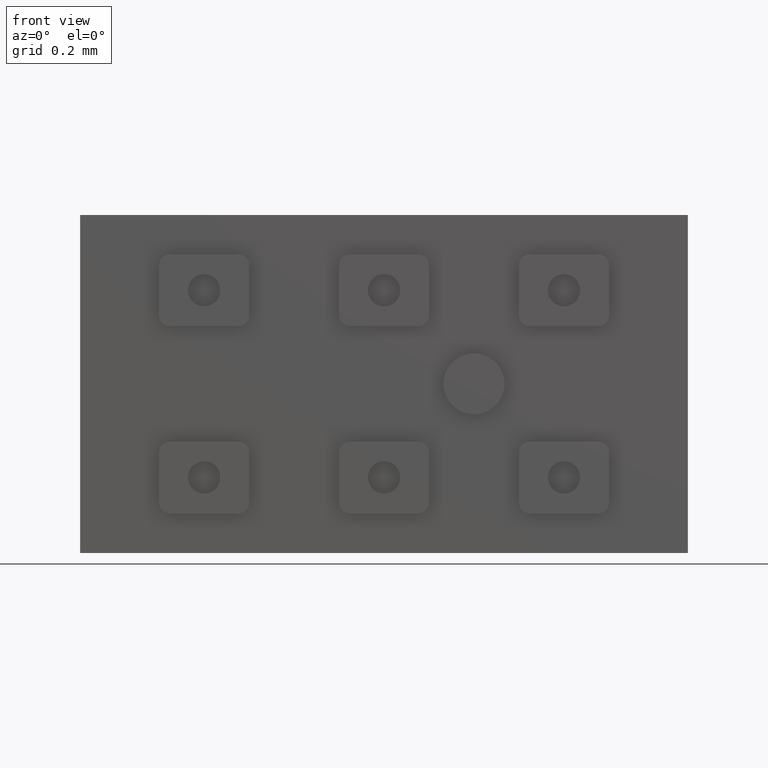
[diagram: clean part render]
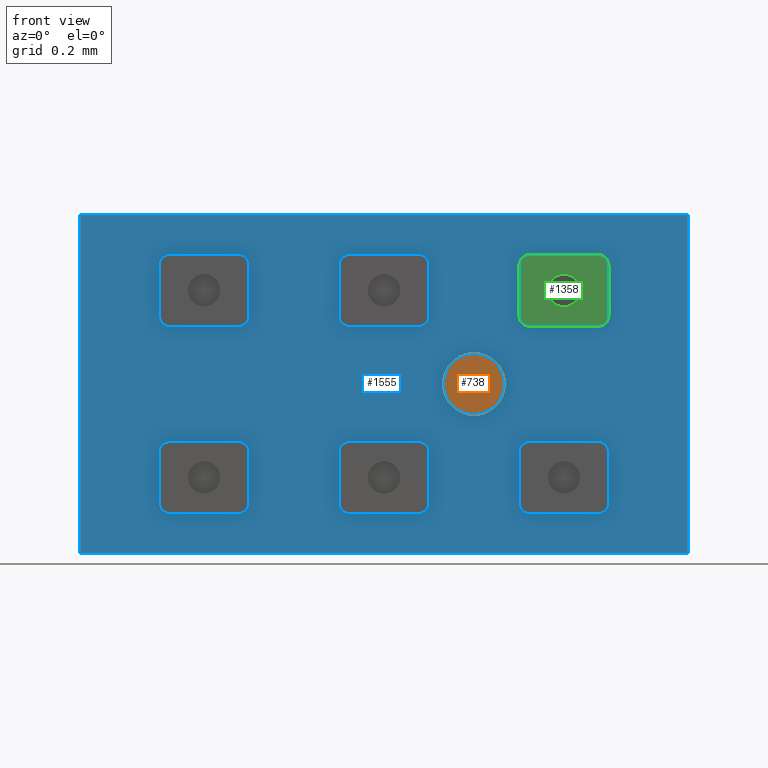
[diagram: same view with three faces highlighted in distinct colors, each labeled with its STEP entity id]
A machine part, front view with three faces highlighted in distinct colors.
Their STEP definitions:

[orange] entity #738 — the highlighted planar face has unit normal (0, -1, 0).
#362 = ORIENTED_EDGE ( 'NONE', *, *, #743, .T. ) ;
#559 = CARTESIAN_POINT ( 'NONE',  ( 0.2499999999999997780, -0.3149999999999999467, 0.08500000000000003386 ) ) ;
#738 = ADVANCED_FACE ( 'NONE', ( #1523 ), #1146, .T. ) ;
#743 = EDGE_CURVE ( 'NONE', #1703, #2240, #1034, .T. ) ;
#751 = AXIS2_PLACEMENT_3D ( 'NONE', #1535, #1174, #762 ) ;
#760 = DIRECTION ( 'NONE',  ( 0.000000000000000000, -1.000000000000000000, 0.000000000000000000 ) ) ;
#762 = DIRECTION ( 'NONE',  ( 0.000000000000000000, 0.000000000000000000, -1.000000000000000000 ) ) ;
#883 = EDGE_LOOP ( 'NONE', ( #362, #1006 ) ) ;
#968 = CARTESIAN_POINT ( 'NONE',  ( 0.2499999999999997780, -0.3149999999999999467, 0.000000000000000000 ) ) ;
#1006 = ORIENTED_EDGE ( 'NONE', *, *, #1284, .T. ) ;
#1034 = CIRCLE ( 'NONE', #1372, 0.08500000000000003386 ) ;
#1146 = PLANE ( 'NONE',  #2162 ) ;
#1174 = DIRECTION ( 'NONE',  ( 0.000000000000000000, -1.000000000000000000, 0.000000000000000000 ) ) ;
#1284 = EDGE_CURVE ( 'NONE', #2240, #1703, #1285, .T. ) ;
#1285 = CIRCLE ( 'NONE', #751, 0.08500000000000003386 ) ;
#1372 = AXIS2_PLACEMENT_3D ( 'NONE', #968, #1752, #2028 ) ;
#1523 = FACE_OUTER_BOUND ( 'NONE', #883, .T. ) ;
#1535 = CARTESIAN_POINT ( 'NONE',  ( 0.2499999999999997780, -0.3149999999999999467, 0.000000000000000000 ) ) ;
#1545 = DIRECTION ( 'NONE',  ( 0.000000000000000000, -0.000000000000000000, -1.000000000000000000 ) ) ;
#1703 = VERTEX_POINT ( 'NONE', #559 ) ;
#1752 = DIRECTION ( 'NONE',  ( 0.000000000000000000, -1.000000000000000000, 0.000000000000000000 ) ) ;
#1938 = CARTESIAN_POINT ( 'NONE',  ( 0.2499999999999997780, -0.3149999999999999467, 0.000000000000000000 ) ) ;
#2018 = CARTESIAN_POINT ( 'NONE',  ( 0.2499999999999997780, -0.3149999999999999467, -0.08500000000000003386 ) ) ;
#2028 = DIRECTION ( 'NONE',  ( 0.000000000000000000, 0.000000000000000000, -1.000000000000000000 ) ) ;
#2162 = AXIS2_PLACEMENT_3D ( 'NONE', #1938, #760, #1545 ) ;
#2240 = VERTEX_POINT ( 'NONE', #2018 ) ;

[blue] entity #1555 — the highlighted planar face has unit normal (0, 1, 0).
#5 = VERTEX_POINT ( 'NONE', #1710 ) ;
#8 = LINE ( 'NONE', #2384, #838 ) ;
#18 = EDGE_CURVE ( 'NONE', #165, #488, #332, .T. ) ;
#22 = LINE ( 'NONE', #1992, #1778 ) ;
#54 = CARTESIAN_POINT ( 'NONE',  ( 0.1250000000000000000, -0.2949999999999999845, 0.3300000000000035683 ) ) ;
#57 = DIRECTION ( 'NONE',  ( 0.000000000000000000, 1.000000000000000000, 0.000000000000000000 ) ) ;
#58 = VERTEX_POINT ( 'NONE', #64 ) ;
#63 = EDGE_CURVE ( 'NONE', #350, #2362, #568, .T. ) ;
#64 = CARTESIAN_POINT ( 'NONE',  ( 0.3750000000000000000, -0.2949999999999999845, 0.3300000000000001266 ) ) ;
#72 = CARTESIAN_POINT ( 'NONE',  ( 0.4049999999999999711, -0.2949999999999999845, -0.3599999999999999867 ) ) ;
#76 = AXIS2_PLACEMENT_3D ( 'NONE', #1945, #700, #907 ) ;
#81 = ORIENTED_EDGE ( 'NONE', *, *, #1334, .T. ) ;
#82 = ORIENTED_EDGE ( 'NONE', *, *, #1518, .T. ) ;
#89 = CARTESIAN_POINT ( 'NONE',  ( 0.09500000000000002887, -0.2949999999999999845, 0.1900000000000035272 ) ) ;
#93 = CIRCLE ( 'NONE', #677, 0.02999999999999997113 ) ;
#98 = VERTEX_POINT ( 'NONE', #1457 ) ;
#101 = CARTESIAN_POINT ( 'NONE',  ( -0.1250000000000000000, -0.2949999999999999845, 0.1900000000000035272 ) ) ;
#107 = VECTOR ( 'NONE', #1616, 1000.000000000000000 ) ;
#110 = CARTESIAN_POINT ( 'NONE',  ( -0.8445000000000001394, -0.2949999999999999845, -0.4694999999999999174 ) ) ;
#111 = CARTESIAN_POINT ( 'NONE',  ( -0.5950000000000000844, -0.2949999999999999845, -0.1599999999999930367 ) ) ;
#113 = VECTOR ( 'NONE', #1522, 1000.000000000000000 ) ;
#117 = CARTESIAN_POINT ( 'NONE',  ( 0.1250000000000000000, -0.2949999999999999845, 0.1900000000000035272 ) ) ;
#118 = VERTEX_POINT ( 'NONE', #487 ) ;
#125 = DIRECTION ( 'NONE',  ( 1.000000000000000000, 0.000000000000000000, 0.000000000000000000 ) ) ;
#138 = VECTOR ( 'NONE', #2112, 1000.000000000000000 ) ;
#139 = ORIENTED_EDGE ( 'NONE', *, *, #1706, .T. ) ;
#147 = CIRCLE ( 'NONE', #317, 0.02999999999999997113 ) ;
#153 = VECTOR ( 'NONE', #320, 1000.000000000000000 ) ;
#160 = DIRECTION ( 'NONE',  ( -0.000000000000000000, -0.000000000000000000, -1.000000000000000000 ) ) ;
#165 = VERTEX_POINT ( 'NONE', #2405 ) ;
#168 = DIRECTION ( 'NONE',  ( -0.000000000000000000, -0.000000000000000000, -1.000000000000000000 ) ) ;
#170 = CARTESIAN_POINT ( 'NONE',  ( -0.1250000000000000000, -0.2949999999999999845, -0.3299999999999965183 ) ) ;
#185 = DIRECTION ( 'NONE',  ( 0.000000000000000000, 0.000000000000000000, 1.000000000000000000 ) ) ;
#187 = VERTEX_POINT ( 'NONE', #666 ) ;
#196 = AXIS2_PLACEMENT_3D ( 'NONE', #449, #1817, #257 ) ;
#198 = ORIENTED_EDGE ( 'NONE', *, *, #2242, .T. ) ;
#203 = CIRCLE ( 'NONE', #287, 0.08500000000000003386 ) ;
#214 = ORIENTED_EDGE ( 'NONE', *, *, #1893, .F. ) ;
#219 = CARTESIAN_POINT ( 'NONE',  ( -0.3750000000000000000, -0.2949999999999999845, 0.3300000000000071210 ) ) ;
#220 = AXIS2_PLACEMENT_3D ( 'NONE', #1103, #1910, #2238 ) ;
#222 = DIRECTION ( 'NONE',  ( -1.000000000000000000, -0.000000000000000000, -0.000000000000000000 ) ) ;
#225 = ORIENTED_EDGE ( 'NONE', *, *, #1853, .F. ) ;
#228 = CIRCLE ( 'NONE', #2015, 0.02999999999999997113 ) ;
#229 = VERTEX_POINT ( 'NONE', #1415 ) ;
#230 = EDGE_CURVE ( 'NONE', #1028, #98, #1568, .T. ) ;
#233 = EDGE_CURVE ( 'NONE', #187, #943, #1690, .T. ) ;
#239 = ORIENTED_EDGE ( 'NONE', *, *, #1176, .T. ) ;
#240 = CARTESIAN_POINT ( 'NONE',  ( 0.8444999999999999174, -0.2949999999999999845, -0.4695000000000001394 ) ) ;
#246 = LINE ( 'NONE', #1818, #1814 ) ;
#252 = CARTESIAN_POINT ( 'NONE',  ( 0.5950000000000000844, -0.2949999999999999845, 0.1600000000000000866 ) ) ;
#255 = ORIENTED_EDGE ( 'NONE', *, *, #261, .T. ) ;
#257 = DIRECTION ( 'NONE',  ( 0.000000000000000000, 0.000000000000000000, 1.000000000000000000 ) ) ;
#258 = DIRECTION ( 'NONE',  ( 0.000000000000000000, 1.000000000000000000, 0.000000000000000000 ) ) ;
#261 = EDGE_CURVE ( 'NONE', #1802, #410, #547, .T. ) ;
#262 = PLANE ( 'NONE',  #1234 ) ;
#270 = VERTEX_POINT ( 'NONE', #1675 ) ;
#274 = ORIENTED_EDGE ( 'NONE', *, *, #63, .T. ) ;
#275 = CARTESIAN_POINT ( 'NONE',  ( 0.8444999999999998064, -0.2949999999999999845, 0.4694999999999998619 ) ) ;
#281 = ORIENTED_EDGE ( 'NONE', *, *, #1824, .T. ) ;
#287 = AXIS2_PLACEMENT_3D ( 'NONE', #1362, #2166, #185 ) ;
#290 = CARTESIAN_POINT ( 'NONE',  ( 0.09500000000000002887, -0.2949999999999999845, -0.1899999999999964773 ) ) ;
#292 = EDGE_CURVE ( 'NONE', #2079, #1092, #228, .T. ) ;
#299 = CARTESIAN_POINT ( 'NONE',  ( -0.6250000000000000000, -0.2949999999999999845, -0.1899999999999930078 ) ) ;
#300 = EDGE_CURVE ( 'NONE', #509, #1208, #2114, .T. ) ;
#302 = CIRCLE ( 'NONE', #515, 0.02999999999999997113 ) ;
#313 = VERTEX_POINT ( 'NONE', #2310 ) ;
#314 = VERTEX_POINT ( 'NONE', #110 ) ;
#316 = DIRECTION ( 'NONE',  ( 0.000000000000000000, 1.000000000000000000, 0.000000000000000000 ) ) ;
#317 = AXIS2_PLACEMENT_3D ( 'NONE', #2541, #2564, #595 ) ;
#320 = DIRECTION ( 'NONE',  ( -0.000000000000000000, -0.000000000000000000, -1.000000000000000000 ) ) ;
#322 = AXIS2_PLACEMENT_3D ( 'NONE', #1048, #57, #851 ) ;
#328 = ORIENTED_EDGE ( 'NONE', *, *, #1026, .T. ) ;
#332 = CIRCLE ( 'NONE', #2568, 0.02999999999999997113 ) ;
#336 = EDGE_CURVE ( 'NONE', #1335, #2430, #2221, .T. ) ;
#337 = LINE ( 'NONE', #2507, #1023 ) ;
#343 = CARTESIAN_POINT ( 'NONE',  ( -0.1250000000000000000, -0.2949999999999999845, 0.1900000000000035272 ) ) ;
#347 = DIRECTION ( 'NONE',  ( 0.000000000000000000, 0.000000000000000000, 1.000000000000000000 ) ) ;
#348 = CARTESIAN_POINT ( 'NONE',  ( 0.3750000000000000000, -0.2949999999999999845, -0.3300000000000000155 ) ) ;
#350 = VERTEX_POINT ( 'NONE', #1694 ) ;
#354 = LINE ( 'NONE', #1147, #1810 ) ;
#358 = ORIENTED_EDGE ( 'NONE', *, *, #2274, .T. ) ;
#380 = CARTESIAN_POINT ( 'NONE',  ( -0.09500000000000002887, -0.2949999999999999845, 0.1600000000000035560 ) ) ;
#384 = DIRECTION ( 'NONE',  ( 0.000000000000000000, 0.000000000000000000, 1.000000000000000000 ) ) ;
#402 = EDGE_CURVE ( 'NONE', #270, #1210, #203, .T. ) ;
#410 = VERTEX_POINT ( 'NONE', #964 ) ;
#413 = CARTESIAN_POINT ( 'NONE',  ( -0.5950000000000000844, -0.2949999999999999845, 0.1600000000000070810 ) ) ;
#420 = EDGE_CURVE ( 'NONE', #765, #1636, #1201, .T. ) ;
#427 = VECTOR ( 'NONE', #1469, 1000.000000000000000 ) ;
#433 = VECTOR ( 'NONE', #1240, 1000.000000000000000 ) ;
#445 = CARTESIAN_POINT ( 'NONE',  ( 0.8444999999999998064, -0.2949999999999999845, 0.4694999999999998619 ) ) ;
#449 = CARTESIAN_POINT ( 'NONE',  ( -0.5950000000000000844, -0.2949999999999999845, -0.3299999999999930766 ) ) ;
#455 = CARTESIAN_POINT ( 'NONE',  ( -0.4049999999999999711, -0.2949999999999999845, -0.1899999999999930078 ) ) ;
#462 = DIRECTION ( 'NONE',  ( 0.000000000000000000, 1.000000000000000000, 0.000000000000000000 ) ) ;
#468 = CARTESIAN_POINT ( 'NONE',  ( 0.1250000000000000000, -0.2949999999999999845, 0.1900000000000035272 ) ) ;
#474 = DIRECTION ( 'NONE',  ( 1.000000000000000000, 0.000000000000000000, 0.000000000000000000 ) ) ;
#475 = CIRCLE ( 'NONE', #2471, 0.02999999999999997113 ) ;
#482 = CIRCLE ( 'NONE', #322, 0.02999999999999997113 ) ;
#486 = LINE ( 'NONE', #111, #1485 ) ;
#487 = CARTESIAN_POINT ( 'NONE',  ( 0.09500000000000002887, -0.2949999999999999845, 0.1600000000000035560 ) ) ;
#488 = VERTEX_POINT ( 'NONE', #1793 ) ;
#491 = DIRECTION ( 'NONE',  ( 0.000000000000000000, 1.000000000000000000, 0.000000000000000000 ) ) ;
#499 = VECTOR ( 'NONE', #2197, 1000.000000000000000 ) ;
#500 = VECTOR ( 'NONE', #2523, 1000.000000000000000 ) ;
#503 = CARTESIAN_POINT ( 'NONE',  ( 0.4049999999999999711, -0.2949999999999999845, 0.1900000000000000577 ) ) ;
#505 = DIRECTION ( 'NONE',  ( 0.000000000000000000, 1.000000000000000000, -0.000000000000000000 ) ) ;
#509 = VERTEX_POINT ( 'NONE', #1982 ) ;
#510 = EDGE_LOOP ( 'NONE', ( #2373, #1854 ) ) ;
#515 = AXIS2_PLACEMENT_3D ( 'NONE', #1306, #316, #1109 ) ;
#535 = CARTESIAN_POINT ( 'NONE',  ( 0.5950000000000000844, -0.2949999999999999845, 0.3600000000000000977 ) ) ;
#542 = DIRECTION ( 'NONE',  ( 0.000000000000000000, 1.000000000000000000, 0.000000000000000000 ) ) ;
#547 = LINE ( 'NONE', #2517, #1434 ) ;
#549 = DIRECTION ( 'NONE',  ( -0.000000000000000000, -1.000000000000000000, -0.000000000000000000 ) ) ;
#555 = DIRECTION ( 'NONE',  ( 0.000000000000000000, 1.000000000000000000, 0.000000000000000000 ) ) ;
#557 = ORIENTED_EDGE ( 'NONE', *, *, #1839, .T. ) ;
#568 = CIRCLE ( 'NONE', #1929, 0.02999999999999997113 ) ;
#578 = VECTOR ( 'NONE', #2480, 1000.000000000000000 ) ;
#580 = AXIS2_PLACEMENT_3D ( 'NONE', #1644, #1856, #2207 ) ;
#585 = ORIENTED_EDGE ( 'NONE', *, *, #292, .T. ) ;
#595 = DIRECTION ( 'NONE',  ( 0.000000000000000000, 0.000000000000000000, 1.000000000000000000 ) ) ;
#600 = CARTESIAN_POINT ( 'NONE',  ( 0.4049999999999999711, -0.2949999999999999845, -0.3599999999999999867 ) ) ;
#603 = EDGE_CURVE ( 'NONE', #1182, #187, #8, .T. ) ;
#605 = ORIENTED_EDGE ( 'NONE', *, *, #2545, .T. ) ;
#606 = CIRCLE ( 'NONE', #813, 0.02999999999999997113 ) ;
#611 = DIRECTION ( 'NONE',  ( 0.000000000000000000, 0.000000000000000000, 1.000000000000000000 ) ) ;
#620 = AXIS2_PLACEMENT_3D ( 'NONE', #1179, #1772, #1748 ) ;
#627 = CARTESIAN_POINT ( 'NONE',  ( -0.8445000000000001394, -0.2949999999999999845, 0.4695000000000000284 ) ) ;
#629 = FACE_BOUND ( 'NONE', #1218, .T. ) ;
#644 = CARTESIAN_POINT ( 'NONE',  ( 0.3750000000000000000, -0.2949999999999999845, -0.3300000000000000155 ) ) ;
#645 = VERTEX_POINT ( 'NONE', #942 ) ;
#657 = LINE ( 'NONE', #275, #2243 ) ;
#666 = CARTESIAN_POINT ( 'NONE',  ( 0.09500000000000002887, -0.2949999999999999845, 0.3600000000000035394 ) ) ;
#671 = FACE_BOUND ( 'NONE', #1919, .T. ) ;
#676 = DIRECTION ( 'NONE',  ( -1.000000000000000000, -0.000000000000000000, -0.000000000000000000 ) ) ;
#677 = AXIS2_PLACEMENT_3D ( 'NONE', #455, #1074, #864 ) ;
#685 = EDGE_CURVE ( 'NONE', #98, #1759, #1133, .T. ) ;
#688 = DIRECTION ( 'NONE',  ( 0.000000000000000000, -0.000000000000000000, 1.000000000000000000 ) ) ;
#691 = CIRCLE ( 'NONE', #220, 0.02999999999999997113 ) ;
#692 = CIRCLE ( 'NONE', #2557, 0.02999999999999997113 ) ;
#700 = DIRECTION ( 'NONE',  ( 0.000000000000000000, 1.000000000000000000, 0.000000000000000000 ) ) ;
#708 = VERTEX_POINT ( 'NONE', #1366 ) ;
#710 = DIRECTION ( 'NONE',  ( 0.000000000000000000, 0.000000000000000000, 1.000000000000000000 ) ) ;
#721 = EDGE_CURVE ( 'NONE', #645, #1626, #1950, .T. ) ;
#722 = EDGE_CURVE ( 'NONE', #1759, #1301, #2488, .T. ) ;
#724 = ORIENTED_EDGE ( 'NONE', *, *, #2382, .T. ) ;
#734 = CARTESIAN_POINT ( 'NONE',  ( -0.09500000000000002887, -0.2949999999999999845, -0.3599999999999964895 ) ) ;
#740 = DIRECTION ( 'NONE',  ( 0.000000000000000000, 0.000000000000000000, 1.000000000000000000 ) ) ;
#761 = ORIENTED_EDGE ( 'NONE', *, *, #800, .T. ) ;
#765 = VERTEX_POINT ( 'NONE', #600 ) ;
#768 = CARTESIAN_POINT ( 'NONE',  ( 0.8444999999999999174, -0.2949999999999999845, -0.4695000000000001394 ) ) ;
#778 = ORIENTED_EDGE ( 'NONE', *, *, #832, .T. ) ;
#781 = ORIENTED_EDGE ( 'NONE', *, *, #1312, .T. ) ;
#791 = VERTEX_POINT ( 'NONE', #627 ) ;
#800 = EDGE_CURVE ( 'NONE', #5, #165, #2209, .T. ) ;
#812 = CIRCLE ( 'NONE', #1676, 0.02999999999999997113 ) ;
#813 = AXIS2_PLACEMENT_3D ( 'NONE', #1347, #2156, #1970 ) ;
#831 = DIRECTION ( 'NONE',  ( 0.000000000000000000, 1.000000000000000000, 0.000000000000000000 ) ) ;
#832 = EDGE_CURVE ( 'NONE', #2551, #1028, #246, .T. ) ;
#838 = VECTOR ( 'NONE', #1507, 1000.000000000000000 ) ;
#842 = VERTEX_POINT ( 'NONE', #219 ) ;
#851 = DIRECTION ( 'NONE',  ( 0.000000000000000000, 0.000000000000000000, 1.000000000000000000 ) ) ;
#852 = VERTEX_POINT ( 'NONE', #2419 ) ;
#864 = DIRECTION ( 'NONE',  ( 0.000000000000000000, 0.000000000000000000, -1.000000000000000000 ) ) ;
#868 = EDGE_LOOP ( 'NONE', ( #988, #274, #2460, #2044, #761, #2543, #724, #1281 ) ) ;
#876 = ORIENTED_EDGE ( 'NONE', *, *, #1015, .T. ) ;
#884 = CARTESIAN_POINT ( 'NONE',  ( -0.09500000000000002887, -0.2949999999999999845, 0.3600000000000035394 ) ) ;
#897 = DIRECTION ( 'NONE',  ( 0.000000000000000000, 1.000000000000000000, 0.000000000000000000 ) ) ;
#898 = VECTOR ( 'NONE', #474, 1000.000000000000000 ) ;
#899 = ORIENTED_EDGE ( 'NONE', *, *, #2328, .T. ) ;
#900 = VERTEX_POINT ( 'NONE', #2446 ) ;
#903 = AXIS2_PLACEMENT_3D ( 'NONE', #2270, #1612, #2421 ) ;
#907 = DIRECTION ( 'NONE',  ( 0.000000000000000000, 0.000000000000000000, 1.000000000000000000 ) ) ;
#910 = DIRECTION ( 'NONE',  ( 0.000000000000000000, 0.000000000000000000, 1.000000000000000000 ) ) ;
#911 = ORIENTED_EDGE ( 'NONE', *, *, #721, .T. ) ;
#912 = VECTOR ( 'NONE', #2223, 1000.000000000000000 ) ;
#914 = LINE ( 'NONE', #1498, #898 ) ;
#919 = EDGE_CURVE ( 'NONE', #791, #1594, #657, .T. ) ;
#934 = EDGE_CURVE ( 'NONE', #1092, #58, #1459, .T. ) ;
#937 = DIRECTION ( 'NONE',  ( 0.000000000000000000, 1.000000000000000000, 0.000000000000000000 ) ) ;
#938 = DIRECTION ( 'NONE',  ( 0.000000000000000000, 0.000000000000000000, 1.000000000000000000 ) ) ;
#942 = CARTESIAN_POINT ( 'NONE',  ( -0.3750000000000000000, -0.2949999999999999845, -0.1899999999999930078 ) ) ;
#943 = VERTEX_POINT ( 'NONE', #54 ) ;
#946 = CARTESIAN_POINT ( 'NONE',  ( 0.6250000000000000000, -0.2949999999999999845, 0.1900000000000000577 ) ) ;
#957 = ORIENTED_EDGE ( 'NONE', *, *, #1385, .T. ) ;
#964 = CARTESIAN_POINT ( 'NONE',  ( 0.6250000000000000000, -0.2949999999999999845, -0.3300000000000000155 ) ) ;
#970 = CARTESIAN_POINT ( 'NONE',  ( -0.5950000000000000844, -0.2949999999999999845, -0.1599999999999930367 ) ) ;
#985 = ORIENTED_EDGE ( 'NONE', *, *, #2476, .F. ) ;
#987 = CARTESIAN_POINT ( 'NONE',  ( -0.3750000000000000000, -0.2949999999999999845, -0.3299999999999930766 ) ) ;
#988 = ORIENTED_EDGE ( 'NONE', *, *, #2425, .T. ) ;
#992 = DIRECTION ( 'NONE',  ( 0.000000000000000000, 0.000000000000000000, 1.000000000000000000 ) ) ;
#997 = ORIENTED_EDGE ( 'NONE', *, *, #336, .T. ) ;
#1010 = DIRECTION ( 'NONE',  ( -1.000000000000000000, -0.000000000000000000, -0.000000000000000000 ) ) ;
#1011 = DIRECTION ( 'NONE',  ( -0.000000000000000000, -0.000000000000000000, -1.000000000000000000 ) ) ;
#1015 = EDGE_CURVE ( 'NONE', #2186, #1198, #2466, .T. ) ;
#1017 = EDGE_CURVE ( 'NONE', #2440, #1182, #812, .T. ) ;
#1023 = VECTOR ( 'NONE', #1917, 1000.000000000000000 ) ;
#1026 = EDGE_CURVE ( 'NONE', #313, #842, #691, .T. ) ;
#1028 = VERTEX_POINT ( 'NONE', #2287 ) ;
#1039 = VERTEX_POINT ( 'NONE', #117 ) ;
#1044 = VECTOR ( 'NONE', #1481, 1000.000000000000000 ) ;
#1048 = CARTESIAN_POINT ( 'NONE',  ( -0.5950000000000000844, -0.2949999999999999845, 0.1900000000000070521 ) ) ;
#1058 = CARTESIAN_POINT ( 'NONE',  ( 0.3750000000000000000, -0.2949999999999999845, 0.1900000000000000577 ) ) ;
#1068 = CARTESIAN_POINT ( 'NONE',  ( 0.6250000000000000000, -0.2949999999999999845, 0.3300000000000001266 ) ) ;
#1069 = CARTESIAN_POINT ( 'NONE',  ( -0.09500000000000002887, -0.2949999999999999845, -0.3299999999999965183 ) ) ;
#1074 = DIRECTION ( 'NONE',  ( 0.000000000000000000, 1.000000000000000000, -0.000000000000000000 ) ) ;
#1077 = VERTEX_POINT ( 'NONE', #1848 ) ;
#1082 = EDGE_CURVE ( 'NONE', #2213, #2509, #914, .T. ) ;
#1092 = VERTEX_POINT ( 'NONE', #1269 ) ;
#1094 = DIRECTION ( 'NONE',  ( 0.000000000000000000, 1.000000000000000000, 0.000000000000000000 ) ) ;
#1099 = CARTESIAN_POINT ( 'NONE',  ( 0.4049999999999999711, -0.2949999999999999845, 0.3300000000000001266 ) ) ;
#1103 = CARTESIAN_POINT ( 'NONE',  ( -0.4049999999999999711, -0.2949999999999999845, 0.3300000000000071210 ) ) ;
#1105 = VERTEX_POINT ( 'NONE', #101 ) ;
#1106 = ORIENTED_EDGE ( 'NONE', *, *, #420, .T. ) ;
#1108 = DIRECTION ( 'NONE',  ( 0.000000000000000000, 0.000000000000000000, 1.000000000000000000 ) ) ;
#1109 = DIRECTION ( 'NONE',  ( 0.000000000000000000, 0.000000000000000000, 1.000000000000000000 ) ) ;
#1115 = CARTESIAN_POINT ( 'NONE',  ( -0.4049999999999999711, -0.2949999999999999845, -0.3599999999999930478 ) ) ;
#1121 = CARTESIAN_POINT ( 'NONE',  ( -0.09500000000000002887, -0.2949999999999999845, 0.3300000000000035683 ) ) ;
#1133 = LINE ( 'NONE', #2365, #1828 ) ;
#1139 = ORIENTED_EDGE ( 'NONE', *, *, #230, .T. ) ;
#1147 = CARTESIAN_POINT ( 'NONE',  ( 0.4049999999999999711, -0.2949999999999999845, 0.1600000000000000866 ) ) ;
#1151 = EDGE_CURVE ( 'NONE', #2518, #2411, #475, .T. ) ;
#1157 = EDGE_CURVE ( 'NONE', #1353, #1335, #2127, .T. ) ;
#1161 = VECTOR ( 'NONE', #222, 1000.000000000000000 ) ;
#1176 = EDGE_CURVE ( 'NONE', #1039, #118, #1476, .T. ) ;
#1179 = CARTESIAN_POINT ( 'NONE',  ( 0.4049999999999999711, -0.2949999999999999845, -0.3300000000000000155 ) ) ;
#1182 = VERTEX_POINT ( 'NONE', #884 ) ;
#1183 = VECTOR ( 'NONE', #611, 1000.000000000000000 ) ;
#1195 = CARTESIAN_POINT ( 'NONE',  ( 0.4049999999999999711, -0.2949999999999999845, -0.1599999999999999756 ) ) ;
#1198 = VERTEX_POINT ( 'NONE', #2469 ) ;
#1201 = CIRCLE ( 'NONE', #620, 0.02999999999999997113 ) ;
#1205 = EDGE_CURVE ( 'NONE', #2479, #765, #1851, .T. ) ;
#1208 = VERTEX_POINT ( 'NONE', #2258 ) ;
#1210 = VERTEX_POINT ( 'NONE', #2275 ) ;
#1218 = EDGE_LOOP ( 'NONE', ( #1751, #1106, #1487, #281, #876, #139, #255, #557 ) ) ;
#1230 = AXIS2_PLACEMENT_3D ( 'NONE', #2527, #1346, #740 ) ;
#1233 = LINE ( 'NONE', #240, #427 ) ;
#1234 = AXIS2_PLACEMENT_3D ( 'NONE', #1862, #491, #688 ) ;
#1240 = DIRECTION ( 'NONE',  ( 0.000000000000000000, 0.000000000000000000, 1.000000000000000000 ) ) ;
#1244 = EDGE_CURVE ( 'NONE', #118, #229, #1926, .T. ) ;
#1251 = DIRECTION ( 'NONE',  ( 1.000000000000000000, -0.000000000000000000, -9.628793716567534647E-17 ) ) ;
#1253 = FACE_BOUND ( 'NONE', #1422, .T. ) ;
#1258 = LINE ( 'NONE', #445, #107 ) ;
#1267 = FACE_BOUND ( 'NONE', #510, .T. ) ;
#1269 = CARTESIAN_POINT ( 'NONE',  ( 0.3750000000000000000, -0.2949999999999999845, 0.1900000000000000577 ) ) ;
#1279 = DIRECTION ( 'NONE',  ( 0.000000000000000000, 1.000000000000000000, 0.000000000000000000 ) ) ;
#1281 = ORIENTED_EDGE ( 'NONE', *, *, #1151, .T. ) ;
#1292 = CARTESIAN_POINT ( 'NONE',  ( 0.4049999999999999711, -0.2949999999999999845, -0.1899999999999999467 ) ) ;
#1301 = VERTEX_POINT ( 'NONE', #970 ) ;
#1306 = CARTESIAN_POINT ( 'NONE',  ( -0.4049999999999999711, -0.2949999999999999845, -0.3299999999999930766 ) ) ;
#1312 = EDGE_CURVE ( 'NONE', #229, #1105, #1857, .T. ) ;
#1322 = ORIENTED_EDGE ( 'NONE', *, *, #1157, .T. ) ;
#1332 = DIRECTION ( 'NONE',  ( 1.000000000000000000, 0.000000000000000000, 0.000000000000000000 ) ) ;
#1334 = EDGE_CURVE ( 'NONE', #1771, #2079, #354, .T. ) ;
#1335 = VERTEX_POINT ( 'NONE', #2343 ) ;
#1341 = CARTESIAN_POINT ( 'NONE',  ( -0.5950000000000000844, -0.2949999999999999845, -0.1899999999999930078 ) ) ;
#1343 = CARTESIAN_POINT ( 'NONE',  ( -0.5950000000000000844, -0.2949999999999999845, 0.3600000000000070921 ) ) ;
#1345 = EDGE_LOOP ( 'NONE', ( #778, #1139, #2542, #2033, #1998, #198, #911, #2437 ) ) ;
#1346 = DIRECTION ( 'NONE',  ( 0.000000000000000000, 1.000000000000000000, 0.000000000000000000 ) ) ;
#1347 = CARTESIAN_POINT ( 'NONE',  ( 0.5950000000000000844, -0.2949999999999999845, -0.1899999999999999467 ) ) ;
#1353 = VERTEX_POINT ( 'NONE', #2173 ) ;
#1362 = CARTESIAN_POINT ( 'NONE',  ( 0.2499999999999997780, -0.2949999999999999845, 0.000000000000000000 ) ) ;
#1366 = CARTESIAN_POINT ( 'NONE',  ( -0.4049999999999999711, -0.2949999999999999845, -0.1599999999999930367 ) ) ;
#1367 = AXIS2_PLACEMENT_3D ( 'NONE', #1932, #2349, #384 ) ;
#1385 = EDGE_CURVE ( 'NONE', #1105, #2440, #1392, .T. ) ;
#1387 = ORIENTED_EDGE ( 'NONE', *, *, #1244, .T. ) ;
#1392 = LINE ( 'NONE', #343, #912 ) ;
#1402 = AXIS2_PLACEMENT_3D ( 'NONE', #1955, #555, #2138 ) ;
#1407 = LINE ( 'NONE', #413, #1161 ) ;
#1415 = CARTESIAN_POINT ( 'NONE',  ( -0.09500000000000002887, -0.2949999999999999845, 0.1600000000000035560 ) ) ;
#1422 = EDGE_LOOP ( 'NONE', ( #1387, #781, #957, #1798, #2322, #2451, #2007, #239 ) ) ;
#1434 = VECTOR ( 'NONE', #160, 1000.000000000000000 ) ;
#1446 = FACE_BOUND ( 'NONE', #2202, .T. ) ;
#1457 = CARTESIAN_POINT ( 'NONE',  ( -0.6250000000000000000, -0.2949999999999999845, -0.3299999999999930766 ) ) ;
#1459 = LINE ( 'NONE', #1058, #1044 ) ;
#1469 = DIRECTION ( 'NONE',  ( -1.000000000000000000, 0.000000000000000000, 1.283839162209004620E-16 ) ) ;
#1476 = CIRCLE ( 'NONE', #2070, 0.02999999999999997113 ) ;
#1481 = DIRECTION ( 'NONE',  ( 0.000000000000000000, 0.000000000000000000, 1.000000000000000000 ) ) ;
#1485 = VECTOR ( 'NONE', #125, 1000.000000000000000 ) ;
#1487 = ORIENTED_EDGE ( 'NONE', *, *, #2316, .T. ) ;
#1498 = CARTESIAN_POINT ( 'NONE',  ( 0.4049999999999999711, -0.2949999999999999845, 0.3600000000000000977 ) ) ;
#1502 = LINE ( 'NONE', #946, #138 ) ;
#1507 = DIRECTION ( 'NONE',  ( 1.000000000000000000, 0.000000000000000000, 0.000000000000000000 ) ) ;
#1509 = CARTESIAN_POINT ( 'NONE',  ( 0.09500000000000002887, -0.2949999999999999845, -0.3599999999999964895 ) ) ;
#1518 = EDGE_CURVE ( 'NONE', #842, #509, #22, .T. ) ;
#1521 = ORIENTED_EDGE ( 'NONE', *, *, #2006, .T. ) ;
#1522 = DIRECTION ( 'NONE',  ( -1.000000000000000000, -0.000000000000000000, -0.000000000000000000 ) ) ;
#1527 = EDGE_CURVE ( 'NONE', #1208, #1077, #1407, .T. ) ;
#1530 = CARTESIAN_POINT ( 'NONE',  ( 0.2499999999999997780, -0.2949999999999999845, 0.000000000000000000 ) ) ;
#1538 = ORIENTED_EDGE ( 'NONE', *, *, #919, .F. ) ;
#1541 = ORIENTED_EDGE ( 'NONE', *, *, #1914, .T. ) ;
#1555 = ADVANCED_FACE ( 'NONE', ( #629, #2041, #1649, #671, #1253, #1446, #1267, #1846 ), #262, .F. ) ;
#1568 = CIRCLE ( 'NONE', #196, 0.02999999999999997113 ) ;
#1594 = VERTEX_POINT ( 'NONE', #2057 ) ;
#1606 = VECTOR ( 'NONE', #676, 1000.000000000000000 ) ;
#1607 = ORIENTED_EDGE ( 'NONE', *, *, #1527, .T. ) ;
#1612 = DIRECTION ( 'NONE',  ( 0.000000000000000000, 1.000000000000000000, -0.000000000000000000 ) ) ;
#1616 = DIRECTION ( 'NONE',  ( 1.154634901475510774E-16, 0.000000000000000000, -1.000000000000000000 ) ) ;
#1622 = LINE ( 'NONE', #644, #433 ) ;
#1626 = VERTEX_POINT ( 'NONE', #987 ) ;
#1636 = VERTEX_POINT ( 'NONE', #348 ) ;
#1641 = EDGE_CURVE ( 'NONE', #852, #1771, #2486, .T. ) ;
#1644 = CARTESIAN_POINT ( 'NONE',  ( 0.09500000000000002887, -0.2949999999999999845, 0.3300000000000035683 ) ) ;
#1649 = FACE_BOUND ( 'NONE', #868, .T. ) ;
#1650 = CARTESIAN_POINT ( 'NONE',  ( 0.4049999999999999711, -0.2949999999999999845, 0.3600000000000000977 ) ) ;
#1675 = CARTESIAN_POINT ( 'NONE',  ( 0.2499999999999997780, -0.2949999999999999845, 0.08500000000000003386 ) ) ;
#1676 = AXIS2_PLACEMENT_3D ( 'NONE', #1121, #897, #2496 ) ;
#1684 = CIRCLE ( 'NONE', #2013, 0.02999999999999997113 ) ;
#1690 = CIRCLE ( 'NONE', #580, 0.02999999999999997113 ) ;
#1694 = CARTESIAN_POINT ( 'NONE',  ( -0.09500000000000002887, -0.2949999999999999845, -0.3599999999999964895 ) ) ;
#1695 = CARTESIAN_POINT ( 'NONE',  ( 0.5950000000000000844, -0.2949999999999999845, -0.3599999999999999867 ) ) ;
#1700 = DIRECTION ( 'NONE',  ( 1.000000000000000000, 0.000000000000000000, 0.000000000000000000 ) ) ;
#1706 = EDGE_CURVE ( 'NONE', #1198, #1802, #606, .T. ) ;
#1709 = CARTESIAN_POINT ( 'NONE',  ( 0.1250000000000000000, -0.2949999999999999845, -0.3299999999999965183 ) ) ;
#1710 = CARTESIAN_POINT ( 'NONE',  ( -0.09500000000000002887, -0.2949999999999999845, -0.1599999999999965061 ) ) ;
#1712 = EDGE_CURVE ( 'NONE', #2055, #5, #147, .T. ) ;
#1714 = CARTESIAN_POINT ( 'NONE',  ( -0.1250000000000000000, -0.2949999999999999845, -0.3299999999999965183 ) ) ;
#1731 = VERTEX_POINT ( 'NONE', #768 ) ;
#1746 = EDGE_CURVE ( 'NONE', #1210, #270, #2260, .T. ) ;
#1748 = DIRECTION ( 'NONE',  ( 0.000000000000000000, 0.000000000000000000, 1.000000000000000000 ) ) ;
#1751 = ORIENTED_EDGE ( 'NONE', *, *, #1205, .T. ) ;
#1759 = VERTEX_POINT ( 'NONE', #299 ) ;
#1765 = DIRECTION ( 'NONE',  ( 0.000000000000000000, 0.000000000000000000, 1.000000000000000000 ) ) ;
#1768 = AXIS2_PLACEMENT_3D ( 'NONE', #1530, #549, #2470 ) ;
#1771 = VERTEX_POINT ( 'NONE', #252 ) ;
#1772 = DIRECTION ( 'NONE',  ( 0.000000000000000000, 1.000000000000000000, 0.000000000000000000 ) ) ;
#1774 = EDGE_LOOP ( 'NONE', ( #985, #214, #225, #1538 ) ) ;
#1778 = VECTOR ( 'NONE', #1011, 1000.000000000000000 ) ;
#1780 = LINE ( 'NONE', #170, #1183 ) ;
#1793 = CARTESIAN_POINT ( 'NONE',  ( 0.1250000000000000000, -0.2949999999999999845, -0.1899999999999964773 ) ) ;
#1798 = ORIENTED_EDGE ( 'NONE', *, *, #1017, .T. ) ;
#1800 = VECTOR ( 'NONE', #1700, 1000.000000000000000 ) ;
#1802 = VERTEX_POINT ( 'NONE', #2424 ) ;
#1810 = VECTOR ( 'NONE', #1940, 1000.000000000000000 ) ;
#1814 = VECTOR ( 'NONE', #1010, 1000.000000000000000 ) ;
#1817 = DIRECTION ( 'NONE',  ( 0.000000000000000000, 1.000000000000000000, 0.000000000000000000 ) ) ;
#1818 = CARTESIAN_POINT ( 'NONE',  ( -0.5950000000000000844, -0.2949999999999999845, -0.3599999999999930478 ) ) ;
#1824 = EDGE_CURVE ( 'NONE', #900, #2186, #692, .T. ) ;
#1828 = VECTOR ( 'NONE', #1765, 1000.000000000000000 ) ;
#1839 = EDGE_CURVE ( 'NONE', #410, #2479, #2147, .T. ) ;
#1846 = FACE_OUTER_BOUND ( 'NONE', #1774, .T. ) ;
#1848 = CARTESIAN_POINT ( 'NONE',  ( -0.5950000000000000844, -0.2949999999999999845, 0.1600000000000070810 ) ) ;
#1851 = LINE ( 'NONE', #72, #1606 ) ;
#1853 = EDGE_CURVE ( 'NONE', #1594, #1731, #1258, .T. ) ;
#1854 = ORIENTED_EDGE ( 'NONE', *, *, #1746, .F. ) ;
#1856 = DIRECTION ( 'NONE',  ( 0.000000000000000000, 1.000000000000000000, -0.000000000000000000 ) ) ;
#1857 = CIRCLE ( 'NONE', #1402, 0.02999999999999997113 ) ;
#1862 = CARTESIAN_POINT ( 'NONE',  ( 0.000000000000000000, -0.2949999999999999845, 0.000000000000000000 ) ) ;
#1867 = CARTESIAN_POINT ( 'NONE',  ( 0.09500000000000002887, -0.2949999999999999845, -0.3299999999999965183 ) ) ;
#1875 = CIRCLE ( 'NONE', #903, 0.02999999999999997113 ) ;
#1883 = DIRECTION ( 'NONE',  ( 0.000000000000000000, 0.000000000000000000, 1.000000000000000000 ) ) ;
#1893 = EDGE_CURVE ( 'NONE', #1731, #314, #1233, .T. ) ;
#1896 = ORIENTED_EDGE ( 'NONE', *, *, #934, .T. ) ;
#1899 = LINE ( 'NONE', #1343, #1977 ) ;
#1910 = DIRECTION ( 'NONE',  ( 0.000000000000000000, 1.000000000000000000, -0.000000000000000000 ) ) ;
#1914 = EDGE_CURVE ( 'NONE', #2430, #313, #1899, .T. ) ;
#1917 = DIRECTION ( 'NONE',  ( -0.000000000000000000, -0.000000000000000000, 1.000000000000000000 ) ) ;
#1919 = EDGE_LOOP ( 'NONE', ( #1607, #899, #1322, #997, #1541, #328, #82, #2021 ) ) ;
#1926 = LINE ( 'NONE', #380, #500 ) ;
#1929 = AXIS2_PLACEMENT_3D ( 'NONE', #1069, #258, #910 ) ;
#1932 = CARTESIAN_POINT ( 'NONE',  ( 0.5950000000000000844, -0.2949999999999999845, 0.1900000000000000577 ) ) ;
#1935 = VECTOR ( 'NONE', #710, 1000.000000000000000 ) ;
#1940 = DIRECTION ( 'NONE',  ( -1.000000000000000000, -0.000000000000000000, -0.000000000000000000 ) ) ;
#1945 = CARTESIAN_POINT ( 'NONE',  ( -0.5950000000000000844, -0.2949999999999999845, 0.3300000000000071210 ) ) ;
#1950 = LINE ( 'NONE', #2318, #1952 ) ;
#1952 = VECTOR ( 'NONE', #168, 1000.000000000000000 ) ;
#1955 = CARTESIAN_POINT ( 'NONE',  ( -0.09500000000000002887, -0.2949999999999999845, 0.1900000000000035272 ) ) ;
#1956 = CARTESIAN_POINT ( 'NONE',  ( 0.4049999999999999711, -0.2949999999999999845, 0.1600000000000000866 ) ) ;
#1970 = DIRECTION ( 'NONE',  ( 0.000000000000000000, 0.000000000000000000, -1.000000000000000000 ) ) ;
#1977 = VECTOR ( 'NONE', #1332, 1000.000000000000000 ) ;
#1982 = CARTESIAN_POINT ( 'NONE',  ( -0.3750000000000000000, -0.2949999999999999845, 0.1900000000000070521 ) ) ;
#1984 = CARTESIAN_POINT ( 'NONE',  ( -0.09500000000000002887, -0.2949999999999999845, -0.1599999999999965061 ) ) ;
#1992 = CARTESIAN_POINT ( 'NONE',  ( -0.3750000000000000000, -0.2949999999999999845, 0.1900000000000070521 ) ) ;
#1998 = ORIENTED_EDGE ( 'NONE', *, *, #2474, .T. ) ;
#2006 = EDGE_CURVE ( 'NONE', #2450, #852, #1502, .T. ) ;
#2007 = ORIENTED_EDGE ( 'NONE', *, *, #2487, .T. ) ;
#2008 = EDGE_CURVE ( 'NONE', #1626, #2551, #302, .T. ) ;
#2013 = AXIS2_PLACEMENT_3D ( 'NONE', #1099, #1279, #938 ) ;
#2015 = AXIS2_PLACEMENT_3D ( 'NONE', #503, #937, #347 ) ;
#2021 = ORIENTED_EDGE ( 'NONE', *, *, #300, .T. ) ;
#2033 = ORIENTED_EDGE ( 'NONE', *, *, #722, .T. ) ;
#2041 = FACE_BOUND ( 'NONE', #1345, .T. ) ;
#2044 = ORIENTED_EDGE ( 'NONE', *, *, #1712, .T. ) ;
#2055 = VERTEX_POINT ( 'NONE', #2128 ) ;
#2057 = CARTESIAN_POINT ( 'NONE',  ( 0.8444999999999998064, -0.2949999999999999845, 0.4694999999999998619 ) ) ;
#2070 = AXIS2_PLACEMENT_3D ( 'NONE', #89, #542, #1108 ) ;
#2079 = VERTEX_POINT ( 'NONE', #1956 ) ;
#2080 = DIRECTION ( 'NONE',  ( 0.000000000000000000, 0.000000000000000000, 1.000000000000000000 ) ) ;
#2112 = DIRECTION ( 'NONE',  ( -0.000000000000000000, -0.000000000000000000, -1.000000000000000000 ) ) ;
#2113 = EDGE_CURVE ( 'NONE', #2362, #2055, #1780, .T. ) ;
#2114 = CIRCLE ( 'NONE', #1230, 0.02999999999999997113 ) ;
#2121 = CARTESIAN_POINT ( 'NONE',  ( -0.5950000000000000844, -0.2949999999999999845, 0.3600000000000070921 ) ) ;
#2127 = LINE ( 'NONE', #2501, #1935 ) ;
#2128 = CARTESIAN_POINT ( 'NONE',  ( -0.1250000000000000000, -0.2949999999999999845, -0.1899999999999964773 ) ) ;
#2138 = DIRECTION ( 'NONE',  ( 0.000000000000000000, 0.000000000000000000, 1.000000000000000000 ) ) ;
#2147 = CIRCLE ( 'NONE', #2352, 0.02999999999999997113 ) ;
#2156 = DIRECTION ( 'NONE',  ( 0.000000000000000000, 1.000000000000000000, -0.000000000000000000 ) ) ;
#2166 = DIRECTION ( 'NONE',  ( -0.000000000000000000, -1.000000000000000000, -0.000000000000000000 ) ) ;
#2171 = DIRECTION ( 'NONE',  ( 0.000000000000000000, 1.000000000000000000, 0.000000000000000000 ) ) ;
#2173 = CARTESIAN_POINT ( 'NONE',  ( -0.6250000000000000000, -0.2949999999999999845, 0.1900000000000070521 ) ) ;
#2186 = VERTEX_POINT ( 'NONE', #1195 ) ;
#2197 = DIRECTION ( 'NONE',  ( 1.000000000000000000, 0.000000000000000000, 0.000000000000000000 ) ) ;
#2202 = EDGE_LOOP ( 'NONE', ( #81, #585, #1896, #605, #2309, #358, #1521, #2206 ) ) ;
#2206 = ORIENTED_EDGE ( 'NONE', *, *, #1641, .T. ) ;
#2207 = DIRECTION ( 'NONE',  ( 0.000000000000000000, 0.000000000000000000, -1.000000000000000000 ) ) ;
#2209 = LINE ( 'NONE', #1984, #499 ) ;
#2213 = VERTEX_POINT ( 'NONE', #1650 ) ;
#2221 = CIRCLE ( 'NONE', #76, 0.02999999999999997113 ) ;
#2223 = DIRECTION ( 'NONE',  ( 0.000000000000000000, 0.000000000000000000, 1.000000000000000000 ) ) ;
#2229 = DIRECTION ( 'NONE',  ( 0.000000000000000000, 0.000000000000000000, 1.000000000000000000 ) ) ;
#2238 = DIRECTION ( 'NONE',  ( 0.000000000000000000, 0.000000000000000000, -1.000000000000000000 ) ) ;
#2242 = EDGE_CURVE ( 'NONE', #708, #645, #93, .T. ) ;
#2243 = VECTOR ( 'NONE', #1251, 1000.000000000000000 ) ;
#2249 = DIRECTION ( 'NONE',  ( 0.000000000000000000, 0.000000000000000000, -1.000000000000000000 ) ) ;
#2258 = CARTESIAN_POINT ( 'NONE',  ( -0.4049999999999999711, -0.2949999999999999845, 0.1600000000000070810 ) ) ;
#2260 = CIRCLE ( 'NONE', #1768, 0.08500000000000003386 ) ;
#2270 = CARTESIAN_POINT ( 'NONE',  ( 0.5950000000000000844, -0.2949999999999999845, 0.3300000000000001266 ) ) ;
#2274 = EDGE_CURVE ( 'NONE', #2509, #2450, #1875, .T. ) ;
#2275 = CARTESIAN_POINT ( 'NONE',  ( 0.2499999999999997780, -0.2949999999999999845, -0.08500000000000003386 ) ) ;
#2276 = CARTESIAN_POINT ( 'NONE',  ( 0.5950000000000000844, -0.2949999999999999845, -0.3300000000000000155 ) ) ;
#2279 = AXIS2_PLACEMENT_3D ( 'NONE', #1341, #2171, #992 ) ;
#2283 = CARTESIAN_POINT ( 'NONE',  ( -0.1250000000000000000, -0.2949999999999999845, 0.3300000000000035683 ) ) ;
#2286 = CARTESIAN_POINT ( 'NONE',  ( 0.1250000000000000000, -0.2949999999999999845, -0.3299999999999965183 ) ) ;
#2287 = CARTESIAN_POINT ( 'NONE',  ( -0.5950000000000000844, -0.2949999999999999845, -0.3599999999999930478 ) ) ;
#2309 = ORIENTED_EDGE ( 'NONE', *, *, #1082, .T. ) ;
#2310 = CARTESIAN_POINT ( 'NONE',  ( -0.4049999999999999711, -0.2949999999999999845, 0.3600000000000070921 ) ) ;
#2316 = EDGE_CURVE ( 'NONE', #1636, #900, #1622, .T. ) ;
#2318 = CARTESIAN_POINT ( 'NONE',  ( -0.3750000000000000000, -0.2949999999999999845, -0.3299999999999930766 ) ) ;
#2322 = ORIENTED_EDGE ( 'NONE', *, *, #603, .T. ) ;
#2328 = EDGE_CURVE ( 'NONE', #1077, #1353, #482, .T. ) ;
#2343 = CARTESIAN_POINT ( 'NONE',  ( -0.6250000000000000000, -0.2949999999999999845, 0.3300000000000071210 ) ) ;
#2349 = DIRECTION ( 'NONE',  ( 0.000000000000000000, 1.000000000000000000, 0.000000000000000000 ) ) ;
#2352 = AXIS2_PLACEMENT_3D ( 'NONE', #2276, #462, #2229 ) ;
#2362 = VERTEX_POINT ( 'NONE', #1714 ) ;
#2365 = CARTESIAN_POINT ( 'NONE',  ( -0.6250000000000000000, -0.2949999999999999845, -0.3299999999999930766 ) ) ;
#2373 = ORIENTED_EDGE ( 'NONE', *, *, #402, .F. ) ;
#2382 = EDGE_CURVE ( 'NONE', #488, #2518, #2495, .T. ) ;
#2384 = CARTESIAN_POINT ( 'NONE',  ( -0.09500000000000002887, -0.2949999999999999845, 0.3600000000000035394 ) ) ;
#2405 = CARTESIAN_POINT ( 'NONE',  ( 0.09500000000000002887, -0.2949999999999999845, -0.1599999999999965061 ) ) ;
#2411 = VERTEX_POINT ( 'NONE', #1509 ) ;
#2419 = CARTESIAN_POINT ( 'NONE',  ( 0.6250000000000000000, -0.2949999999999999845, 0.1900000000000000577 ) ) ;
#2421 = DIRECTION ( 'NONE',  ( 0.000000000000000000, 0.000000000000000000, -1.000000000000000000 ) ) ;
#2424 = CARTESIAN_POINT ( 'NONE',  ( 0.6250000000000000000, -0.2949999999999999845, -0.1899999999999999467 ) ) ;
#2425 = EDGE_CURVE ( 'NONE', #2411, #350, #2510, .T. ) ;
#2430 = VERTEX_POINT ( 'NONE', #2121 ) ;
#2437 = ORIENTED_EDGE ( 'NONE', *, *, #2008, .T. ) ;
#2440 = VERTEX_POINT ( 'NONE', #2283 ) ;
#2446 = CARTESIAN_POINT ( 'NONE',  ( 0.3750000000000000000, -0.2949999999999999845, -0.1899999999999999467 ) ) ;
#2450 = VERTEX_POINT ( 'NONE', #1068 ) ;
#2451 = ORIENTED_EDGE ( 'NONE', *, *, #233, .T. ) ;
#2458 = LINE ( 'NONE', #468, #153 ) ;
#2460 = ORIENTED_EDGE ( 'NONE', *, *, #2113, .T. ) ;
#2466 = LINE ( 'NONE', #2511, #1800 ) ;
#2469 = CARTESIAN_POINT ( 'NONE',  ( 0.5950000000000000844, -0.2949999999999999845, -0.1599999999999999756 ) ) ;
#2470 = DIRECTION ( 'NONE',  ( 0.000000000000000000, 0.000000000000000000, 1.000000000000000000 ) ) ;
#2471 = AXIS2_PLACEMENT_3D ( 'NONE', #1867, #1094, #2080 ) ;
#2474 = EDGE_CURVE ( 'NONE', #1301, #708, #486, .T. ) ;
#2476 = EDGE_CURVE ( 'NONE', #314, #791, #337, .T. ) ;
#2479 = VERTEX_POINT ( 'NONE', #1695 ) ;
#2480 = DIRECTION ( 'NONE',  ( -0.000000000000000000, -0.000000000000000000, -1.000000000000000000 ) ) ;
#2486 = CIRCLE ( 'NONE', #1367, 0.02999999999999997113 ) ;
#2487 = EDGE_CURVE ( 'NONE', #943, #1039, #2458, .T. ) ;
#2488 = CIRCLE ( 'NONE', #2279, 0.02999999999999997113 ) ;
#2495 = LINE ( 'NONE', #2286, #578 ) ;
#2496 = DIRECTION ( 'NONE',  ( 0.000000000000000000, 0.000000000000000000, 1.000000000000000000 ) ) ;
#2501 = CARTESIAN_POINT ( 'NONE',  ( -0.6250000000000000000, -0.2949999999999999845, 0.1900000000000070521 ) ) ;
#2507 = CARTESIAN_POINT ( 'NONE',  ( -0.8445000000000001394, -0.2949999999999999845, 0.4695000000000000284 ) ) ;
#2509 = VERTEX_POINT ( 'NONE', #535 ) ;
#2510 = LINE ( 'NONE', #734, #113 ) ;
#2511 = CARTESIAN_POINT ( 'NONE',  ( 0.4049999999999999711, -0.2949999999999999845, -0.1599999999999999756 ) ) ;
#2517 = CARTESIAN_POINT ( 'NONE',  ( 0.6250000000000000000, -0.2949999999999999845, -0.3300000000000000155 ) ) ;
#2518 = VERTEX_POINT ( 'NONE', #1709 ) ;
#2523 = DIRECTION ( 'NONE',  ( -1.000000000000000000, -0.000000000000000000, -0.000000000000000000 ) ) ;
#2527 = CARTESIAN_POINT ( 'NONE',  ( -0.4049999999999999711, -0.2949999999999999845, 0.1900000000000070521 ) ) ;
#2541 = CARTESIAN_POINT ( 'NONE',  ( -0.09500000000000002887, -0.2949999999999999845, -0.1899999999999964773 ) ) ;
#2542 = ORIENTED_EDGE ( 'NONE', *, *, #685, .T. ) ;
#2543 = ORIENTED_EDGE ( 'NONE', *, *, #18, .T. ) ;
#2545 = EDGE_CURVE ( 'NONE', #58, #2213, #1684, .T. ) ;
#2551 = VERTEX_POINT ( 'NONE', #1115 ) ;
#2557 = AXIS2_PLACEMENT_3D ( 'NONE', #1292, #831, #1883 ) ;
#2564 = DIRECTION ( 'NONE',  ( 0.000000000000000000, 1.000000000000000000, 0.000000000000000000 ) ) ;
#2568 = AXIS2_PLACEMENT_3D ( 'NONE', #290, #505, #2249 ) ;

[green] entity #1358 — the highlighted planar face has unit normal (0, 1, 0).
#2 = FACE_OUTER_BOUND ( 'NONE', #1971, .T. ) ;
#3 = CARTESIAN_POINT ( 'NONE',  ( 0.6250000000000000000, -0.3149999999999999467, 0.3300000000000001266 ) ) ;
#11 = LINE ( 'NONE', #837, #30 ) ;
#30 = VECTOR ( 'NONE', #2432, 1000.000000000000000 ) ;
#102 = EDGE_LOOP ( 'NONE', ( #1435, #753 ) ) ;
#105 = DIRECTION ( 'NONE',  ( 0.000000000000000000, 1.000000000000000000, 0.000000000000000000 ) ) ;
#145 = DIRECTION ( 'NONE',  ( 0.000000000000000000, 0.000000000000000000, 1.000000000000000000 ) ) ;
#157 = DIRECTION ( 'NONE',  ( 0.000000000000000000, 0.000000000000000000, 1.000000000000000000 ) ) ;
#169 = CARTESIAN_POINT ( 'NONE',  ( 0.5950000000000000844, -0.3149999999999999467, 0.3300000000000001266 ) ) ;
#175 = CARTESIAN_POINT ( 'NONE',  ( 0.6250000000000000000, -0.3149999999999999467, 0.1900000000000000577 ) ) ;
#176 = VERTEX_POINT ( 'NONE', #2027 ) ;
#221 = VECTOR ( 'NONE', #419, 1000.000000000000000 ) ;
#318 = VERTEX_POINT ( 'NONE', #1140 ) ;
#344 = DIRECTION ( 'NONE',  ( 0.000000000000000000, 1.000000000000000000, 0.000000000000000000 ) ) ;
#391 = DIRECTION ( 'NONE',  ( 0.000000000000000000, 0.000000000000000000, -1.000000000000000000 ) ) ;
#393 = VERTEX_POINT ( 'NONE', #1129 ) ;
#419 = DIRECTION ( 'NONE',  ( -0.000000000000000000, -0.000000000000000000, -1.000000000000000000 ) ) ;
#476 = CIRCLE ( 'NONE', #1150, 0.02999999999999997113 ) ;
#556 = DIRECTION ( 'NONE',  ( -1.000000000000000000, -0.000000000000000000, -0.000000000000000000 ) ) ;
#570 = CARTESIAN_POINT ( 'NONE',  ( 0.4049999999999999711, -0.3149999999999999467, 0.1900000000000000577 ) ) ;
#574 = CARTESIAN_POINT ( 'NONE',  ( 0.4049999999999999711, -0.3149999999999999467, 0.1600000000000000866 ) ) ;
#591 = DIRECTION ( 'NONE',  ( 0.000000000000000000, 1.000000000000000000, -0.000000000000000000 ) ) ;
#650 = ORIENTED_EDGE ( 'NONE', *, *, #1905, .F. ) ;
#672 = DIRECTION ( 'NONE',  ( 0.000000000000000000, 0.000000000000000000, 1.000000000000000000 ) ) ;
#720 = CARTESIAN_POINT ( 'NONE',  ( 0.3750000000000000000, -0.3149999999999999467, 0.3300000000000001266 ) ) ;
#732 = ORIENTED_EDGE ( 'NONE', *, *, #1963, .F. ) ;
#753 = ORIENTED_EDGE ( 'NONE', *, *, #2278, .T. ) ;
#774 = CARTESIAN_POINT ( 'NONE',  ( 0.4049999999999999711, -0.3149999999999999467, 0.1900000000000000577 ) ) ;
#794 = ORIENTED_EDGE ( 'NONE', *, *, #1983, .F. ) ;
#837 = CARTESIAN_POINT ( 'NONE',  ( 0.4049999999999999711, -0.3149999999999999467, 0.3600000000000000977 ) ) ;
#839 = CARTESIAN_POINT ( 'NONE',  ( 0.5000000000000000000, -0.3149999999999999467, 0.2600000000000000644 ) ) ;
#840 = CIRCLE ( 'NONE', #1584, 0.02999999999999997113 ) ;
#847 = VERTEX_POINT ( 'NONE', #1795 ) ;
#854 = AXIS2_PLACEMENT_3D ( 'NONE', #839, #2448, #672 ) ;
#924 = VERTEX_POINT ( 'NONE', #1647 ) ;
#939 = ORIENTED_EDGE ( 'NONE', *, *, #1745, .F. ) ;
#984 = VECTOR ( 'NONE', #556, 1000.000000000000000 ) ;
#1009 = AXIS2_PLACEMENT_3D ( 'NONE', #570, #105, #2485 ) ;
#1025 = CARTESIAN_POINT ( 'NONE',  ( 0.5000000000000000000, -0.3149999999999999467, 0.2150000000000001077 ) ) ;
#1062 = VERTEX_POINT ( 'NONE', #720 ) ;
#1088 = CARTESIAN_POINT ( 'NONE',  ( 0.5000000000000000000, -0.3149999999999999467, 0.2600000000000000644 ) ) ;
#1129 = CARTESIAN_POINT ( 'NONE',  ( 0.6250000000000000000, -0.3149999999999999467, 0.1900000000000000577 ) ) ;
#1140 = CARTESIAN_POINT ( 'NONE',  ( 0.3750000000000000000, -0.3149999999999999467, 0.1900000000000000577 ) ) ;
#1150 = AXIS2_PLACEMENT_3D ( 'NONE', #1813, #1761, #2553 ) ;
#1215 = CARTESIAN_POINT ( 'NONE',  ( 0.5950000000000000844, -0.3149999999999999467, 0.1600000000000000866 ) ) ;
#1317 = ORIENTED_EDGE ( 'NONE', *, *, #1327, .F. ) ;
#1327 = EDGE_CURVE ( 'NONE', #924, #2165, #1737, .T. ) ;
#1354 = DIRECTION ( 'NONE',  ( 0.000000000000000000, 1.000000000000000000, 0.000000000000000000 ) ) ;
#1358 = ADVANCED_FACE ( 'NONE', ( #1381, #2 ), #2354, .F. ) ;
#1381 = FACE_BOUND ( 'NONE', #102, .T. ) ;
#1416 = CIRCLE ( 'NONE', #1009, 0.02999999999999997113 ) ;
#1435 = ORIENTED_EDGE ( 'NONE', *, *, #1576, .T. ) ;
#1439 = AXIS2_PLACEMENT_3D ( 'NONE', #774, #1354, #1779 ) ;
#1449 = ORIENTED_EDGE ( 'NONE', *, *, #1473, .F. ) ;
#1463 = DIRECTION ( 'NONE',  ( 0.000000000000000000, 0.000000000000000000, 1.000000000000000000 ) ) ;
#1471 = VERTEX_POINT ( 'NONE', #1215 ) ;
#1473 = EDGE_CURVE ( 'NONE', #176, #924, #11, .T. ) ;
#1576 = EDGE_CURVE ( 'NONE', #847, #2273, #2159, .T. ) ;
#1584 = AXIS2_PLACEMENT_3D ( 'NONE', #2139, #344, #157 ) ;
#1647 = CARTESIAN_POINT ( 'NONE',  ( 0.5950000000000000844, -0.3149999999999999467, 0.3600000000000000977 ) ) ;
#1664 = VECTOR ( 'NONE', #145, 1000.000000000000000 ) ;
#1681 = VERTEX_POINT ( 'NONE', #574 ) ;
#1705 = LINE ( 'NONE', #1927, #1664 ) ;
#1729 = LINE ( 'NONE', #2292, #984 ) ;
#1735 = EDGE_CURVE ( 'NONE', #2165, #393, #2203, .T. ) ;
#1737 = CIRCLE ( 'NONE', #1902, 0.02999999999999997113 ) ;
#1745 = EDGE_CURVE ( 'NONE', #1062, #176, #476, .T. ) ;
#1761 = DIRECTION ( 'NONE',  ( 0.000000000000000000, 1.000000000000000000, 0.000000000000000000 ) ) ;
#1779 = DIRECTION ( 'NONE',  ( 0.000000000000000000, -0.000000000000000000, 1.000000000000000000 ) ) ;
#1795 = CARTESIAN_POINT ( 'NONE',  ( 0.5000000000000000000, -0.3149999999999999467, 0.3050000000000001044 ) ) ;
#1813 = CARTESIAN_POINT ( 'NONE',  ( 0.4049999999999999711, -0.3149999999999999467, 0.3300000000000001266 ) ) ;
#1835 = ORIENTED_EDGE ( 'NONE', *, *, #1981, .F. ) ;
#1902 = AXIS2_PLACEMENT_3D ( 'NONE', #169, #591, #391 ) ;
#1905 = EDGE_CURVE ( 'NONE', #1471, #1681, #1729, .T. ) ;
#1927 = CARTESIAN_POINT ( 'NONE',  ( 0.3750000000000000000, -0.3149999999999999467, 0.1900000000000000577 ) ) ;
#1963 = EDGE_CURVE ( 'NONE', #318, #1062, #1705, .T. ) ;
#1971 = EDGE_LOOP ( 'NONE', ( #1835, #650, #794, #2539, #1317, #1449, #939, #732 ) ) ;
#1981 = EDGE_CURVE ( 'NONE', #1681, #318, #1416, .T. ) ;
#1983 = EDGE_CURVE ( 'NONE', #393, #1471, #840, .T. ) ;
#2020 = AXIS2_PLACEMENT_3D ( 'NONE', #1088, #2464, #1463 ) ;
#2027 = CARTESIAN_POINT ( 'NONE',  ( 0.4049999999999999711, -0.3149999999999999467, 0.3600000000000000977 ) ) ;
#2139 = CARTESIAN_POINT ( 'NONE',  ( 0.5950000000000000844, -0.3149999999999999467, 0.1900000000000000577 ) ) ;
#2159 = CIRCLE ( 'NONE', #2020, 0.04500000000000001221 ) ;
#2165 = VERTEX_POINT ( 'NONE', #3 ) ;
#2203 = LINE ( 'NONE', #175, #221 ) ;
#2218 = CIRCLE ( 'NONE', #854, 0.04500000000000001221 ) ;
#2273 = VERTEX_POINT ( 'NONE', #1025 ) ;
#2278 = EDGE_CURVE ( 'NONE', #2273, #847, #2218, .T. ) ;
#2292 = CARTESIAN_POINT ( 'NONE',  ( 0.4049999999999999711, -0.3149999999999999467, 0.1600000000000000866 ) ) ;
#2354 = PLANE ( 'NONE',  #1439 ) ;
#2432 = DIRECTION ( 'NONE',  ( 1.000000000000000000, 0.000000000000000000, 0.000000000000000000 ) ) ;
#2448 = DIRECTION ( 'NONE',  ( 0.000000000000000000, 1.000000000000000000, 0.000000000000000000 ) ) ;
#2464 = DIRECTION ( 'NONE',  ( 0.000000000000000000, 1.000000000000000000, 0.000000000000000000 ) ) ;
#2485 = DIRECTION ( 'NONE',  ( 0.000000000000000000, 0.000000000000000000, 1.000000000000000000 ) ) ;
#2539 = ORIENTED_EDGE ( 'NONE', *, *, #1735, .F. ) ;
#2553 = DIRECTION ( 'NONE',  ( 0.000000000000000000, 0.000000000000000000, 1.000000000000000000 ) ) ;